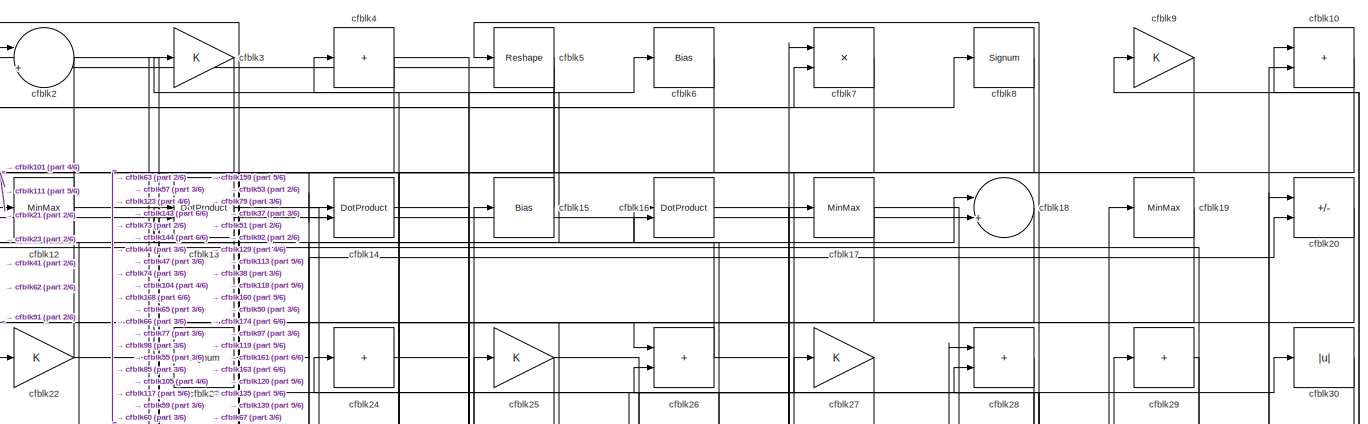
[diagram: root canvas - part 1/6, full width, top band]
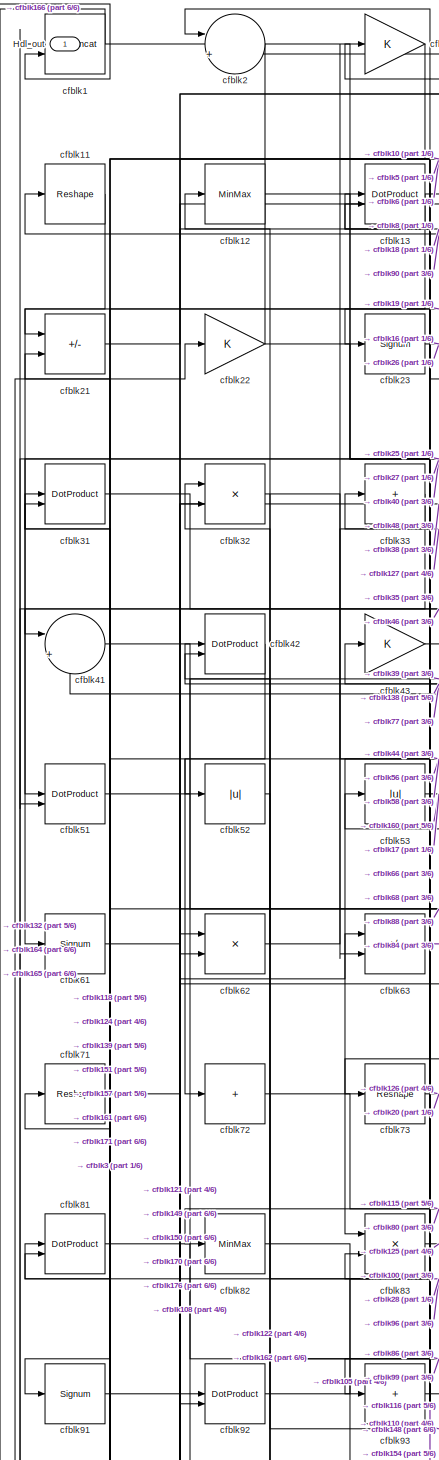
[diagram: root canvas - part 2/6, top left region]
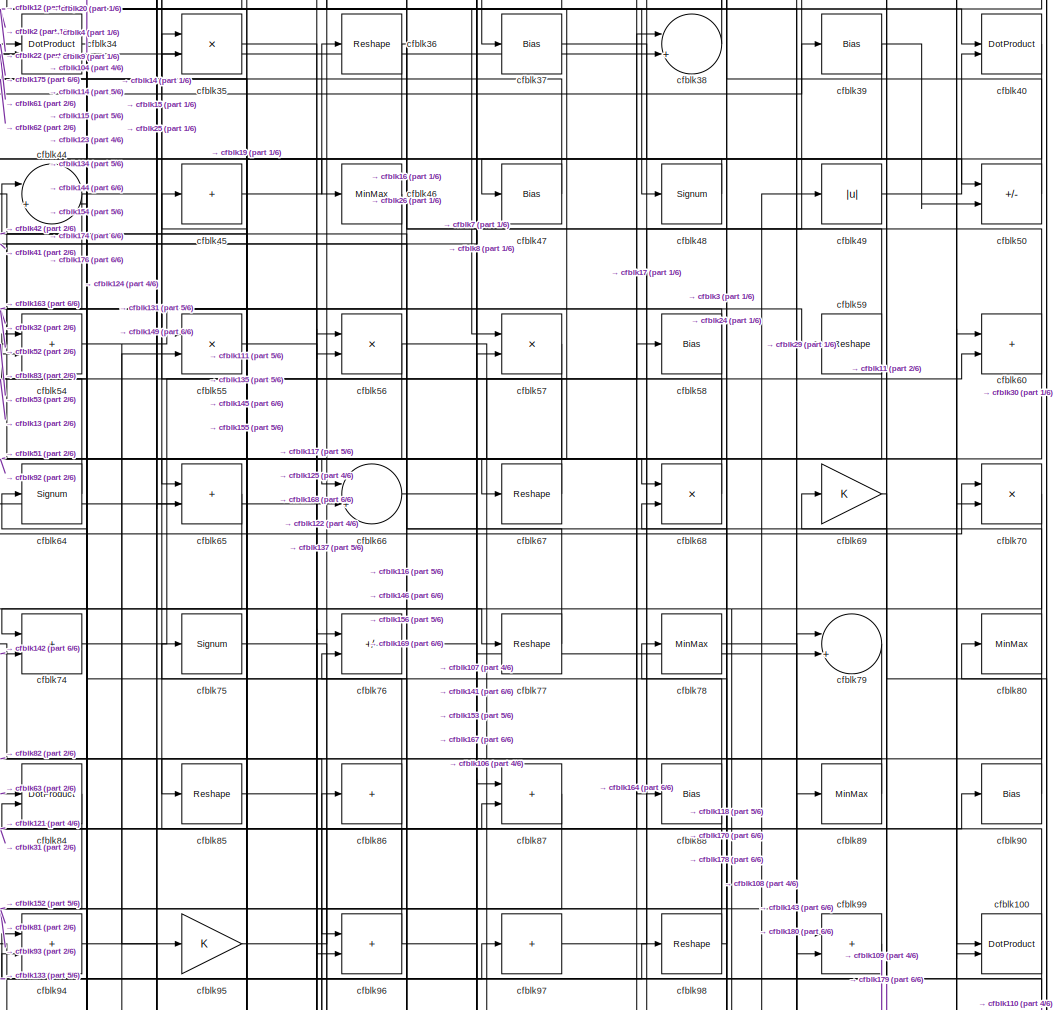
[diagram: root canvas - part 3/6, central region]
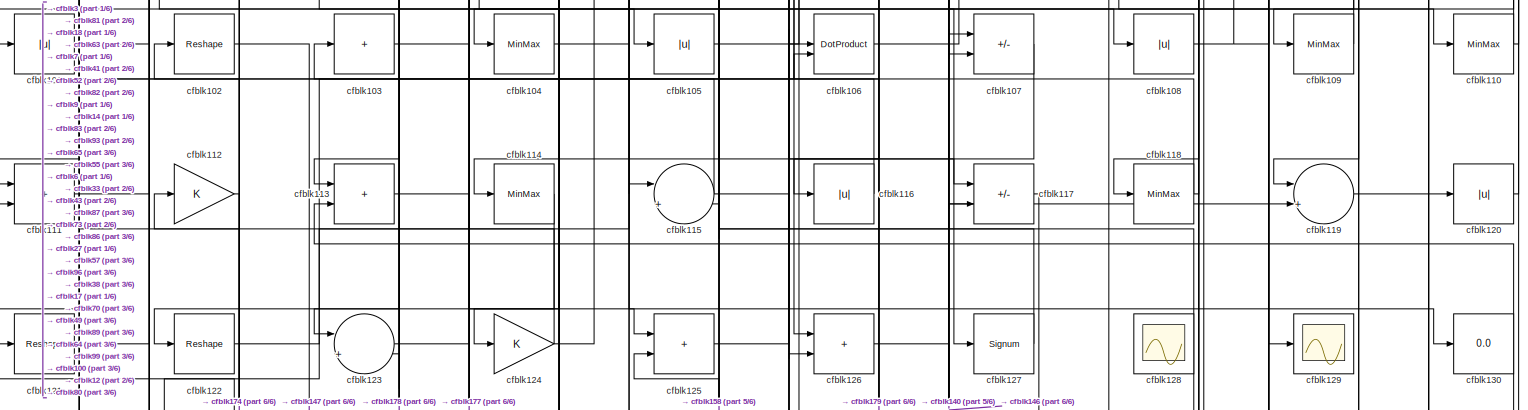
[diagram: root canvas - part 4/6, full width, middle band]
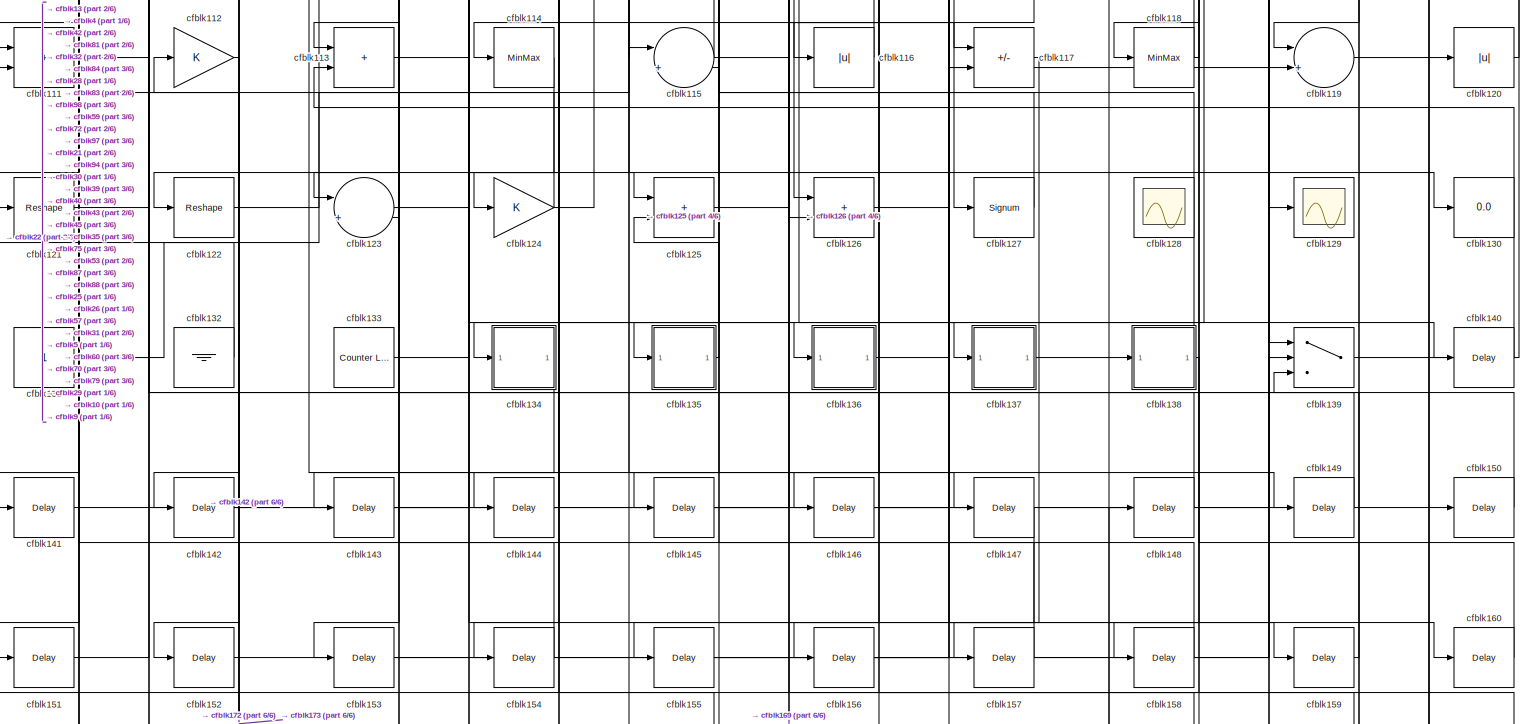
[diagram: root canvas - part 5/6, full width, bottom band]
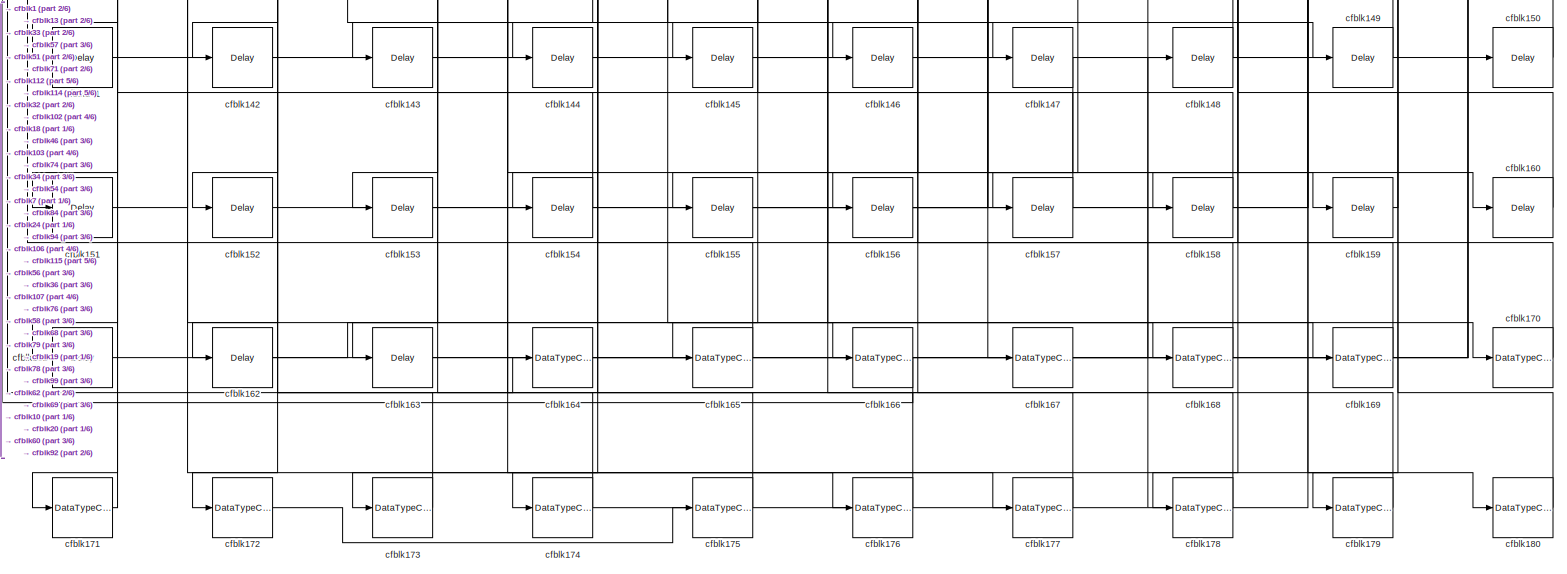
[diagram: root canvas - part 6/6, full width, bottom band]
MODEL slx_e7c823f98995
KIND model
CONFIG AbsTol = auto
CONFIG EnableMultiTasking = off
CONFIG FixedStep = auto
CONFIG MaxStep = auto
CONFIG MinStep = auto
CONFIG RelTol = 1e-3
CONFIG SampleTimeConstraint = Unconstrained
CONFIG SolverName = VariableStepAuto
CONFIG StartTime = 0.0
CONFIG StopTime = 10.0
BLOCK [Outport] Hdl_out
  OutDataTypeStr = uint8
BLOCK [Reference] cfblk1  REF=hdlsllib/Logic and Bit
Operations/Bit Concat
  SourceBlock = hdlsllib/Logic and Bit\nOperations/Bit Concat
  SourceType = Bit Concat
BLOCK [Sum] cfblk10
  IconShape = rectangular
  OutDataTypeStr = uint8
BLOCK [DotProduct] cfblk100
  OutDataTypeStr = uint8
BLOCK [Abs] cfblk101
  OutDataTypeStr = uint8
  SaturateOnIntegerOverflow = off
BLOCK [Reshape] cfblk102
BLOCK [Sum] cfblk103
  IconShape = rectangular
  Inputs = +
  OutDataTypeStr = uint8
BLOCK [MinMax] cfblk104
  OutDataTypeStr = uint8
BLOCK [Abs] cfblk105
  OutDataTypeStr = uint8
  SaturateOnIntegerOverflow = off
BLOCK [DotProduct] cfblk106
  OutDataTypeStr = uint8
BLOCK [Sum] cfblk107
  IconShape = rectangular
  Inputs = +-
  OutDataTypeStr = uint8
BLOCK [Abs] cfblk108
  OutDataTypeStr = uint8
  SaturateOnIntegerOverflow = off
BLOCK [MinMax] cfblk109
  OutDataTypeStr = uint8
BLOCK [Reshape] cfblk11
BLOCK [MinMax] cfblk110
  OutDataTypeStr = uint8
BLOCK [Sum] cfblk111
  IconShape = rectangular
  OutDataTypeStr = uint8
BLOCK [Gain] cfblk112
  OutDataTypeStr = uint8
BLOCK [Sum] cfblk113
  IconShape = rectangular
  OutDataTypeStr = uint8
BLOCK [MinMax] cfblk114
  OutDataTypeStr = uint8
BLOCK [Sum] cfblk115
  Inputs = |++
  OutDataTypeStr = uint8
BLOCK [Abs] cfblk116
  OutDataTypeStr = uint8
  SaturateOnIntegerOverflow = off
BLOCK [Sum] cfblk117
  IconShape = rectangular
  Inputs = +-
  OutDataTypeStr = uint8
BLOCK [MinMax] cfblk118
  OutDataTypeStr = uint8
BLOCK [Sum] cfblk119
  Inputs = |++
  OutDataTypeStr = uint8
BLOCK [MinMax] cfblk12
  OutDataTypeStr = uint8
BLOCK [Abs] cfblk120
  OutDataTypeStr = uint8
  SaturateOnIntegerOverflow = off
BLOCK [Reshape] cfblk121
BLOCK [Reshape] cfblk122
BLOCK [Sum] cfblk123
  Inputs = |++
  OutDataTypeStr = uint8
BLOCK [Gain] cfblk124
  OutDataTypeStr = uint8
BLOCK [Sum] cfblk125
  IconShape = rectangular
  OutDataTypeStr = uint8
BLOCK [Sum] cfblk126
  IconShape = rectangular
  OutDataTypeStr = uint8
BLOCK [Signum] cfblk127
BLOCK [Scope] cfblk128
  Floating = on
  NumInputPorts = 1
  ScopeSpecificationString = Simulink.scopes.TimeScopeBlockCfg('CurrentConfiguration', extmgr.ConfigurationSet(extmgr.Configuration('Core','General UI',true,'FigureColor',[0.156862745098039 0.156862745098039 0.156862745098039]),extmgr.Configuration('Core','Source UI',true),extmgr.Configuration('Sources','WiredSimulink',true,'DataLoggingVariableName','ScopeData1','DataLoggingSaveFormat','StructureWithTime','DataLoggingLimitDat...<+2713ch>
BLOCK [Scope] cfblk129
  Floating = off
  NumInputPorts = 1
  ScopeSpecificationString = Simulink.scopes.TimeScopeBlockCfg('CurrentConfiguration', extmgr.ConfigurationSet(extmgr.Configuration('Core','General UI',true),extmgr.Configuration('Core','Source UI',true),extmgr.Configuration('Sources','WiredSimulink',true,'DataLoggingVariableName','ScopeData2','DataLoggingSaveFormat','Array','DataLoggingLimitDataPoints',true,'DataLoggingDecimation','1'),extmgr.Configuration('Visuals','Time Do...<+868ch>
BLOCK [DotProduct] cfblk13
  OutDataTypeStr = uint8
BLOCK [Display] cfblk130
  Decimation = 1
BLOCK [Constant] cfblk131
  OutDataTypeStr = uint8
  SampleTime = -1
BLOCK [Ground] cfblk132
BLOCK [Reference] cfblk133  REF=hdlsllib/Sources/Counter
Limited
  SourceBlock = hdlsllib/Sources/Counter\nLimited
  SourceType = Counter Limited
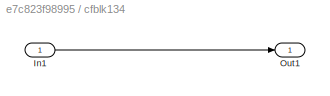
BLOCK [SubSystem] cfblk134
  LibrarySourceBlock = hdlsllib/Ports &\nSubsystems/Subsystem
BLOCK [Inport] cfblk134/In1
BLOCK [Outport] cfblk134/Out1
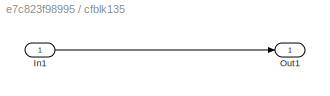
BLOCK [SubSystem] cfblk135
  LibrarySourceBlock = hdlsllib/Ports &\nSubsystems/Subsystem
BLOCK [Inport] cfblk135/In1
BLOCK [Outport] cfblk135/Out1
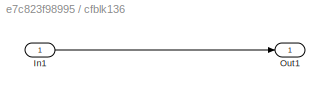
BLOCK [SubSystem] cfblk136
  LibrarySourceBlock = hdlsllib/Ports &\nSubsystems/Subsystem
BLOCK [Inport] cfblk136/In1
BLOCK [Outport] cfblk136/Out1
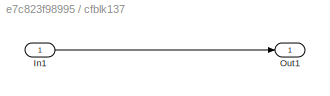
BLOCK [SubSystem] cfblk137
  LibrarySourceBlock = hdlsllib/Ports &\nSubsystems/Subsystem
BLOCK [Inport] cfblk137/In1
BLOCK [Outport] cfblk137/Out1
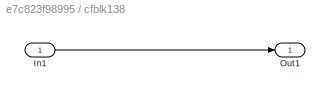
BLOCK [SubSystem] cfblk138
  LibrarySourceBlock = hdlsllib/Ports &\nSubsystems/Subsystem
BLOCK [Inport] cfblk138/In1
BLOCK [Outport] cfblk138/Out1
BLOCK [Switch] cfblk139
  InputSameDT = off
  OutDataTypeStr = uint8
  SaturateOnIntegerOverflow = off
BLOCK [DotProduct] cfblk14
  OutDataTypeStr = uint8
BLOCK [Delay] cfblk140
  InputPortMap = u0
  SampleTime = 1
BLOCK [Delay] cfblk141
  InputPortMap = u0
  SampleTime = 1
BLOCK [Delay] cfblk142
  InputPortMap = u0
  SampleTime = 1
BLOCK [Delay] cfblk143
  InputPortMap = u0
  SampleTime = 1
BLOCK [Delay] cfblk144
  InputPortMap = u0
  SampleTime = 1
BLOCK [Delay] cfblk145
  InputPortMap = u0
  SampleTime = 1
BLOCK [Delay] cfblk146
  InputPortMap = u0
  SampleTime = 1
BLOCK [Delay] cfblk147
  InputPortMap = u0
  SampleTime = 1
BLOCK [Delay] cfblk148
  InputPortMap = u0
  SampleTime = 1
BLOCK [Delay] cfblk149
  InputPortMap = u0
  SampleTime = 1
BLOCK [Bias] cfblk15
  Bias = 0.0
  SaturateOnIntegerOverflow = off
BLOCK [Delay] cfblk150
  InputPortMap = u0
  SampleTime = 1
BLOCK [Delay] cfblk151
  InputPortMap = u0
  SampleTime = 1
BLOCK [Delay] cfblk152
  InputPortMap = u0
  SampleTime = 1
BLOCK [Delay] cfblk153
  InputPortMap = u0
  SampleTime = 1
BLOCK [Delay] cfblk154
  InputPortMap = u0
  SampleTime = 1
BLOCK [Delay] cfblk155
  InputPortMap = u0
  SampleTime = 1
BLOCK [Delay] cfblk156
  InputPortMap = u0
  SampleTime = 1
BLOCK [Delay] cfblk157
  InputPortMap = u0
  SampleTime = 1
BLOCK [Delay] cfblk158
  InputPortMap = u0
  SampleTime = 1
BLOCK [Delay] cfblk159
  InputPortMap = u0
  SampleTime = 1
BLOCK [DotProduct] cfblk16
  OutDataTypeStr = uint8
BLOCK [Delay] cfblk160
  InputPortMap = u0
  SampleTime = 1
BLOCK [Delay] cfblk161
  InputPortMap = u0
  SampleTime = 1
BLOCK [Delay] cfblk162
  InputPortMap = u0
  SampleTime = 1
BLOCK [Delay] cfblk163
  InputPortMap = u0
  SampleTime = 1
BLOCK [DataTypeConversion] cfblk164
  OutDataTypeStr = uint8
  RndMeth = Floor
  SaturateOnIntegerOverflow = off
BLOCK [DataTypeConversion] cfblk165
  OutDataTypeStr = uint8
  RndMeth = Floor
  SaturateOnIntegerOverflow = off
BLOCK [DataTypeConversion] cfblk166
  OutDataTypeStr = uint8
  RndMeth = Floor
  SaturateOnIntegerOverflow = off
BLOCK [DataTypeConversion] cfblk167
  OutDataTypeStr = uint8
  RndMeth = Floor
  SaturateOnIntegerOverflow = off
BLOCK [DataTypeConversion] cfblk168
  OutDataTypeStr = uint8
  RndMeth = Floor
  SaturateOnIntegerOverflow = off
BLOCK [DataTypeConversion] cfblk169
  OutDataTypeStr = uint8
  RndMeth = Floor
  SaturateOnIntegerOverflow = off
BLOCK [MinMax] cfblk17
  OutDataTypeStr = uint8
BLOCK [DataTypeConversion] cfblk170
  OutDataTypeStr = uint8
  RndMeth = Floor
  SaturateOnIntegerOverflow = off
BLOCK [DataTypeConversion] cfblk171
  OutDataTypeStr = uint8
  RndMeth = Floor
  SaturateOnIntegerOverflow = off
BLOCK [DataTypeConversion] cfblk172
  OutDataTypeStr = uint8
  RndMeth = Floor
  SaturateOnIntegerOverflow = off
BLOCK [DataTypeConversion] cfblk173
  OutDataTypeStr = uint8
  RndMeth = Floor
  SaturateOnIntegerOverflow = off
BLOCK [DataTypeConversion] cfblk174
  OutDataTypeStr = uint8
  RndMeth = Floor
  SaturateOnIntegerOverflow = off
BLOCK [DataTypeConversion] cfblk175
  OutDataTypeStr = uint8
  RndMeth = Floor
  SaturateOnIntegerOverflow = off
BLOCK [DataTypeConversion] cfblk176
  OutDataTypeStr = uint8
  RndMeth = Floor
  SaturateOnIntegerOverflow = off
BLOCK [DataTypeConversion] cfblk177
  OutDataTypeStr = uint8
  RndMeth = Floor
  SaturateOnIntegerOverflow = off
BLOCK [DataTypeConversion] cfblk178
  OutDataTypeStr = uint8
  RndMeth = Floor
  SaturateOnIntegerOverflow = off
BLOCK [DataTypeConversion] cfblk179
  OutDataTypeStr = uint8
  RndMeth = Floor
  SaturateOnIntegerOverflow = off
BLOCK [Sum] cfblk18
  Inputs = |++
  OutDataTypeStr = uint8
BLOCK [DataTypeConversion] cfblk180
  OutDataTypeStr = uint8
  RndMeth = Floor
  SaturateOnIntegerOverflow = off
BLOCK [MinMax] cfblk19
  OutDataTypeStr = uint8
BLOCK [Sum] cfblk2
  Inputs = |++
  OutDataTypeStr = uint8
BLOCK [Sum] cfblk20
  IconShape = rectangular
  Inputs = +-
  OutDataTypeStr = uint8
BLOCK [Sum] cfblk21
  IconShape = rectangular
  Inputs = +-
  OutDataTypeStr = uint8
BLOCK [Gain] cfblk22
  OutDataTypeStr = uint8
BLOCK [Signum] cfblk23
BLOCK [Sum] cfblk24
  IconShape = rectangular
  Inputs = +
  OutDataTypeStr = uint8
BLOCK [Gain] cfblk25
  OutDataTypeStr = uint8
BLOCK [Sum] cfblk26
  IconShape = rectangular
  OutDataTypeStr = uint8
BLOCK [Gain] cfblk27
  OutDataTypeStr = uint8
BLOCK [Sum] cfblk28
  IconShape = rectangular
  OutDataTypeStr = uint8
BLOCK [Sum] cfblk29
  IconShape = rectangular
  Inputs = +
  OutDataTypeStr = uint8
BLOCK [Gain] cfblk3
  OutDataTypeStr = uint8
BLOCK [Abs] cfblk30
  OutDataTypeStr = uint8
  SaturateOnIntegerOverflow = off
BLOCK [DotProduct] cfblk31
  OutDataTypeStr = uint8
BLOCK [Product] cfblk32
  Inputs = */
  OutDataTypeStr = uint8
  RndMeth = Zero
  SaturateOnIntegerOverflow = on
BLOCK [Sum] cfblk33
  IconShape = rectangular
  Inputs = +
  OutDataTypeStr = uint8
BLOCK [DotProduct] cfblk34
  OutDataTypeStr = uint8
BLOCK [Product] cfblk35
  Inputs = */
  OutDataTypeStr = uint8
  RndMeth = Zero
  SaturateOnIntegerOverflow = on
BLOCK [Reshape] cfblk36
BLOCK [Bias] cfblk37
  Bias = 0.0
  SaturateOnIntegerOverflow = off
BLOCK [Sum] cfblk38
  Inputs = |++
  OutDataTypeStr = uint8
BLOCK [Bias] cfblk39
  Bias = 0.0
  SaturateOnIntegerOverflow = off
BLOCK [Sum] cfblk4
  IconShape = rectangular
  Inputs = +
  OutDataTypeStr = uint8
BLOCK [DotProduct] cfblk40
  OutDataTypeStr = uint8
BLOCK [Sum] cfblk41
  Inputs = |++
  OutDataTypeStr = uint8
BLOCK [DotProduct] cfblk42
  OutDataTypeStr = uint8
BLOCK [Gain] cfblk43
  OutDataTypeStr = uint8
BLOCK [Sum] cfblk44
  Inputs = |++
  OutDataTypeStr = uint8
BLOCK [Sum] cfblk45
  IconShape = rectangular
  Inputs = +
  OutDataTypeStr = uint8
BLOCK [MinMax] cfblk46
  OutDataTypeStr = uint8
BLOCK [Bias] cfblk47
  Bias = 0.0
  SaturateOnIntegerOverflow = off
BLOCK [Signum] cfblk48
BLOCK [Abs] cfblk49
  OutDataTypeStr = uint8
  SaturateOnIntegerOverflow = off
BLOCK [Reshape] cfblk5
BLOCK [Sum] cfblk50
  IconShape = rectangular
  Inputs = +-
  OutDataTypeStr = uint8
BLOCK [DotProduct] cfblk51
  OutDataTypeStr = uint8
BLOCK [Abs] cfblk52
  OutDataTypeStr = uint8
  SaturateOnIntegerOverflow = off
BLOCK [Abs] cfblk53
  OutDataTypeStr = uint8
  SaturateOnIntegerOverflow = off
BLOCK [Sum] cfblk54
  IconShape = rectangular
  OutDataTypeStr = uint8
BLOCK [Product] cfblk55
  Inputs = */
  OutDataTypeStr = uint8
  RndMeth = Zero
  SaturateOnIntegerOverflow = on
BLOCK [Product] cfblk56
  Inputs = */
  OutDataTypeStr = uint8
  RndMeth = Zero
  SaturateOnIntegerOverflow = on
BLOCK [Product] cfblk57
  Inputs = */
  OutDataTypeStr = uint8
  RndMeth = Zero
  SaturateOnIntegerOverflow = on
BLOCK [Bias] cfblk58
  Bias = 0.0
  SaturateOnIntegerOverflow = off
BLOCK [Reshape] cfblk59
BLOCK [Bias] cfblk6
  Bias = 0.0
  SaturateOnIntegerOverflow = off
BLOCK [Sum] cfblk60
  IconShape = rectangular
  OutDataTypeStr = uint8
BLOCK [Signum] cfblk61
BLOCK [Product] cfblk62
  Inputs = */
  OutDataTypeStr = uint8
  RndMeth = Zero
  SaturateOnIntegerOverflow = on
BLOCK [Sum] cfblk63
  IconShape = rectangular
  Inputs = +-
  OutDataTypeStr = uint8
BLOCK [Signum] cfblk64
BLOCK [Sum] cfblk65
  IconShape = rectangular
  OutDataTypeStr = uint8
BLOCK [Sum] cfblk66
  Inputs = |++
  OutDataTypeStr = uint8
BLOCK [Reshape] cfblk67
BLOCK [Product] cfblk68
  Inputs = */
  OutDataTypeStr = uint8
  RndMeth = Zero
  SaturateOnIntegerOverflow = on
BLOCK [Gain] cfblk69
  OutDataTypeStr = uint8
BLOCK [Product] cfblk7
  Inputs = */
  OutDataTypeStr = uint8
  RndMeth = Zero
  SaturateOnIntegerOverflow = on
BLOCK [Product] cfblk70
  Inputs = */
  OutDataTypeStr = uint8
  RndMeth = Zero
  SaturateOnIntegerOverflow = on
BLOCK [Reshape] cfblk71
BLOCK [Sum] cfblk72
  IconShape = rectangular
  Inputs = +
  OutDataTypeStr = uint8
BLOCK [Reshape] cfblk73
BLOCK [Sum] cfblk74
  IconShape = rectangular
  OutDataTypeStr = uint8
BLOCK [Signum] cfblk75
BLOCK [Sum] cfblk76
  IconShape = rectangular
  Inputs = +-
  OutDataTypeStr = uint8
BLOCK [Reshape] cfblk77
BLOCK [MinMax] cfblk78
  OutDataTypeStr = uint8
BLOCK [Sum] cfblk79
  Inputs = |++
  OutDataTypeStr = uint8
BLOCK [Signum] cfblk8
BLOCK [MinMax] cfblk80
  OutDataTypeStr = uint8
BLOCK [DotProduct] cfblk81
  OutDataTypeStr = uint8
BLOCK [MinMax] cfblk82
  OutDataTypeStr = uint8
BLOCK [Product] cfblk83
  Inputs = */
  OutDataTypeStr = uint8
  RndMeth = Zero
  SaturateOnIntegerOverflow = on
BLOCK [DotProduct] cfblk84
  OutDataTypeStr = uint8
BLOCK [Reshape] cfblk85
BLOCK [Sum] cfblk86
  IconShape = rectangular
  Inputs = +
  OutDataTypeStr = uint8
BLOCK [Sum] cfblk87
  IconShape = rectangular
  OutDataTypeStr = uint8
BLOCK [Bias] cfblk88
  Bias = 0.0
  SaturateOnIntegerOverflow = off
BLOCK [MinMax] cfblk89
  OutDataTypeStr = uint8
BLOCK [Gain] cfblk9
  OutDataTypeStr = uint8
BLOCK [Bias] cfblk90
  Bias = 0.0
  SaturateOnIntegerOverflow = off
BLOCK [Signum] cfblk91
BLOCK [DotProduct] cfblk92
  OutDataTypeStr = uint8
BLOCK [Sum] cfblk93
  IconShape = rectangular
  Inputs = +
  OutDataTypeStr = uint8
BLOCK [Sum] cfblk94
  IconShape = rectangular
  OutDataTypeStr = uint8
BLOCK [Gain] cfblk95
  OutDataTypeStr = uint8
BLOCK [Sum] cfblk96
  IconShape = rectangular
  OutDataTypeStr = uint8
BLOCK [Sum] cfblk97
  IconShape = rectangular
  Inputs = +
  OutDataTypeStr = uint8
BLOCK [Reshape] cfblk98
BLOCK [Sum] cfblk99
  IconShape = rectangular
  OutDataTypeStr = uint8
NET cfblk100:1 -> cfblk121:1, cfblk42:2, cfblk94:2
NET cfblk101:1 -> cfblk18:2, cfblk7:2
LINE cfblk102:1 -> cfblk147:1
LINE cfblk103:1 -> cfblk177:1
NET cfblk104:1 -> cfblk130:1, cfblk6:1
LINE cfblk105:1 -> cfblk27:1
LINE cfblk106:1 -> cfblk38:1
LINE cfblk107:1 -> cfblk124:1
NET cfblk108:1 -> cfblk49:1, cfblk89:1
LINE cfblk109:1 -> cfblk64:1
LINE cfblk10:1 -> cfblk73:1
NET cfblk110:1 -> cfblk12:1, cfblk80:1
LINE cfblk111:1 -> cfblk70:1
LINE cfblk112:1 -> cfblk172:1
LINE cfblk113:1 -> cfblk136:1
LINE cfblk114:1 -> cfblk142:1
NET cfblk115:1 -> cfblk169:1, cfblk21:2, cfblk94:1
LINE cfblk116:1 -> cfblk53:1
LINE cfblk117:1 -> cfblk157:1
NET cfblk118:1 -> cfblk31:2, cfblk5:1
LINE cfblk119:1 -> cfblk120:1
LINE cfblk11:1 -> cfblk61:1
LINE cfblk120:1 -> cfblk10:1
LINE cfblk121:1 -> cfblk63:1
LINE cfblk122:1 -> cfblk86:1
LINE cfblk123:1 -> cfblk14:1
NET cfblk124:1 -> cfblk55:2, cfblk81:1
LINE cfblk125:1 -> cfblk87:2
LINE cfblk126:1 -> cfblk140:1
LINE cfblk127:1 -> cfblk33:1
LINE cfblk12:1 -> cfblk40:1
LINE cfblk131:1 -> cfblk97:1
LINE cfblk132:1 -> cfblk22:1
LINE cfblk133:1 -> cfblk98:1
LINE cfblk134/In1:1 -> cfblk134/Out1:1
LINE cfblk134:1 -> cfblk153:1
LINE cfblk135/In1:1 -> cfblk135/Out1:1
LINE cfblk135:1 -> cfblk45:1
LINE cfblk136/In1:1 -> cfblk136/Out1:1
LINE cfblk136:1 -> cfblk119:2
LINE cfblk137/In1:1 -> cfblk137/Out1:1
LINE cfblk137:1 -> cfblk138:1
LINE cfblk138/In1:1 -> cfblk138/Out1:1
NET cfblk138:1 -> cfblk158:1, cfblk43:1
LINE cfblk139:1 -> cfblk9:1
NET cfblk13:1 -> cfblk139:1, cfblk161:1
LINE cfblk140:1 -> cfblk113:2
LINE cfblk141:1 -> cfblk60:1
LINE cfblk142:1 -> cfblk74:2
LINE cfblk143:1 -> cfblk99:1
LINE cfblk144:1 -> cfblk54:2
LINE cfblk145:1 -> cfblk56:1
LINE cfblk146:1 -> cfblk107:1
LINE cfblk147:1 -> cfblk165:1
LINE cfblk148:1 -> cfblk13:2
LINE cfblk149:1 -> cfblk62:1
LINE cfblk14:1 -> cfblk66:1
LINE cfblk150:1 -> cfblk92:1
LINE cfblk151:1 -> cfblk32:2
LINE cfblk152:1 -> cfblk79:1
LINE cfblk153:1 -> cfblk87:1
LINE cfblk154:1 -> cfblk83:2
LINE cfblk155:1 -> cfblk57:2
LINE cfblk156:1 -> cfblk139:2
LINE cfblk157:1 -> cfblk81:2
LINE cfblk158:1 -> cfblk125:2
LINE cfblk159:1 -> cfblk139:3
LINE cfblk15:1 -> cfblk2:2
LINE cfblk160:1 -> cfblk28:2
LINE cfblk161:1 -> cfblk10:2
LINE cfblk162:1 -> cfblk166:1
LINE cfblk163:1 -> cfblk20:1
LINE cfblk164:1 -> cfblk58:1
LINE cfblk165:1 -> cfblk1:1
LINE cfblk166:1 -> cfblk1:2
LINE cfblk167:1 -> cfblk150:1
LINE cfblk168:1 -> cfblk76:1
LINE cfblk169:1 -> cfblk76:2
LINE cfblk16:1 -> cfblk79:2
NET cfblk170:1 -> cfblk68:2, cfblk84:2
LINE cfblk171:1 -> cfblk71:1
LINE cfblk172:1 -> cfblk175:1
LINE cfblk173:1 -> cfblk112:1
NET cfblk174:1 -> cfblk102:1, cfblk148:1, cfblk19:1
LINE cfblk175:1 -> cfblk34:1
LINE cfblk176:1 -> cfblk34:2
LINE cfblk177:1 -> cfblk106:1
LINE cfblk178:1 -> cfblk103:1
NET cfblk179:1 -> cfblk106:2, cfblk173:1
NET cfblk17:1 -> cfblk129:1, cfblk65:2
LINE cfblk180:1 -> cfblk69:1
LINE cfblk18:1 -> cfblk143:1
NET cfblk19:1 -> cfblk55:1, cfblk91:1
LINE cfblk1:1 -> cfblk164:1
LINE cfblk20:1 -> cfblk74:1
LINE cfblk21:1 -> cfblk18:1
NET cfblk22:1 -> Hdl_out:1, cfblk48:1
NET cfblk23:1 -> cfblk16:1, cfblk26:1
LINE cfblk24:1 -> cfblk168:1
NET cfblk25:1 -> cfblk117:2, cfblk51:2
NET cfblk26:1 -> cfblk159:1, cfblk2:1
LINE cfblk27:1 -> cfblk51:1
LINE cfblk28:1 -> cfblk113:1
LINE cfblk29:1 -> cfblk119:1
NET cfblk2:1 -> cfblk14:2, cfblk57:1
NET cfblk30:1 -> cfblk135:1, cfblk67:1
LINE cfblk31:1 -> cfblk46:1
NET cfblk32:1 -> cfblk162:1, cfblk56:2
LINE cfblk33:1 -> cfblk171:1
LINE cfblk34:1 -> cfblk174:1
LINE cfblk35:1 -> cfblk117:1
NET cfblk36:1 -> cfblk145:1, cfblk146:1
LINE cfblk37:1 -> cfblk100:1
LINE cfblk38:1 -> cfblk3:1
NET cfblk39:1 -> cfblk111:2, cfblk155:1, cfblk50:2
NET cfblk3:1 -> cfblk101:1, cfblk41:1
LINE cfblk40:1 -> cfblk115:2
LINE cfblk41:1 -> cfblk108:1
NET cfblk42:1 -> cfblk151:1, cfblk72:1
LINE cfblk43:1 -> cfblk126:2
NET cfblk44:1 -> cfblk50:1, cfblk83:1
LINE cfblk45:1 -> cfblk36:1
LINE cfblk46:1 -> cfblk163:1
LINE cfblk47:1 -> cfblk4:1
LINE cfblk48:1 -> cfblk47:1
LINE cfblk49:1 -> cfblk40:2
NET cfblk4:1 -> cfblk111:1, cfblk77:1
LINE cfblk50:1 -> cfblk24:1
NET cfblk51:1 -> cfblk176:1, cfblk39:1, cfblk88:1
LINE cfblk52:1 -> cfblk122:1
NET cfblk53:1 -> cfblk160:1, cfblk17:1, cfblk66:2
NET cfblk54:1 -> cfblk59:1, cfblk95:1
LINE cfblk55:1 -> cfblk70:2
NET cfblk56:1 -> cfblk65:1, cfblk68:1
NET cfblk57:1 -> cfblk107:2, cfblk141:1
NET cfblk58:1 -> cfblk52:1, cfblk92:2, cfblk96:1
NET cfblk59:1 -> cfblk114:1, cfblk16:2
LINE cfblk5:1 -> cfblk62:2
NET cfblk60:1 -> cfblk118:1, cfblk26:2, cfblk96:2
LINE cfblk61:1 -> cfblk38:2
NET cfblk62:1 -> cfblk32:1, cfblk35:2
LINE cfblk63:1 -> cfblk84:1
LINE cfblk64:1 -> cfblk54:1
LINE cfblk65:1 -> cfblk104:1
LINE cfblk66:1 -> cfblk7:1
LINE cfblk67:1 -> cfblk25:1
LINE cfblk68:1 -> cfblk13:1
LINE cfblk69:1 -> cfblk179:1
NET cfblk6:1 -> cfblk21:1, cfblk23:1
NET cfblk70:1 -> cfblk100:2, cfblk123:1, cfblk134:1, cfblk154:1
LINE cfblk71:1 -> cfblk170:1
LINE cfblk72:1 -> cfblk115:1
NET cfblk73:1 -> cfblk126:1, cfblk20:2
LINE cfblk74:1 -> cfblk60:2
LINE cfblk75:1 -> cfblk137:1
LINE cfblk76:1 -> cfblk167:1
LINE cfblk77:1 -> cfblk42:1
LINE cfblk78:1 -> cfblk180:1
LINE cfblk79:1 -> cfblk178:1
LINE cfblk7:1 -> cfblk144:1
NET cfblk80:1 -> cfblk41:2, cfblk82:1
LINE cfblk81:1 -> cfblk99:2
LINE cfblk82:1 -> cfblk105:1
LINE cfblk83:1 -> cfblk125:1
LINE cfblk84:1 -> cfblk152:1
LINE cfblk85:1 -> cfblk30:1
NET cfblk86:1 -> cfblk44:1, cfblk93:1
LINE cfblk87:1 -> cfblk116:1
NET cfblk88:1 -> cfblk156:1, cfblk35:1
LINE cfblk89:1 -> cfblk85:1
NET cfblk8:1 -> cfblk37:1, cfblk63:2
LINE cfblk90:1 -> cfblk11:1
LINE cfblk91:1 -> cfblk8:1
LINE cfblk92:1 -> cfblk28:1
LINE cfblk93:1 -> cfblk127:1
LINE cfblk94:1 -> cfblk149:1
NET cfblk95:1 -> cfblk75:1, cfblk90:1
NET cfblk96:1 -> cfblk110:1, cfblk31:1
LINE cfblk97:1 -> cfblk29:1
NET cfblk98:1 -> cfblk15:1, cfblk78:1
LINE cfblk99:1 -> cfblk109:1
NET cfblk9:1 -> cfblk123:2, cfblk44:2
note: NET lines group one-source signal fan-out (src -> all destinations, sorted); 1:1 wires keep LINE
